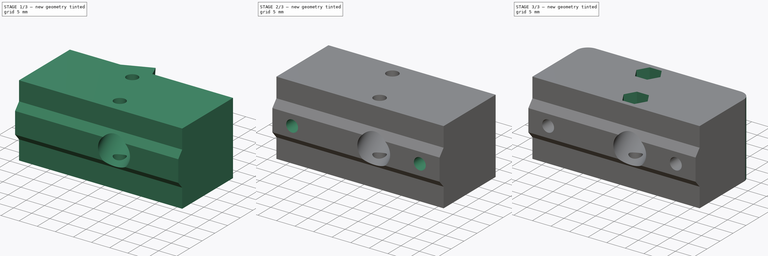
[diagram: build sequence overview — one tinted view per stage of 3, left to right]
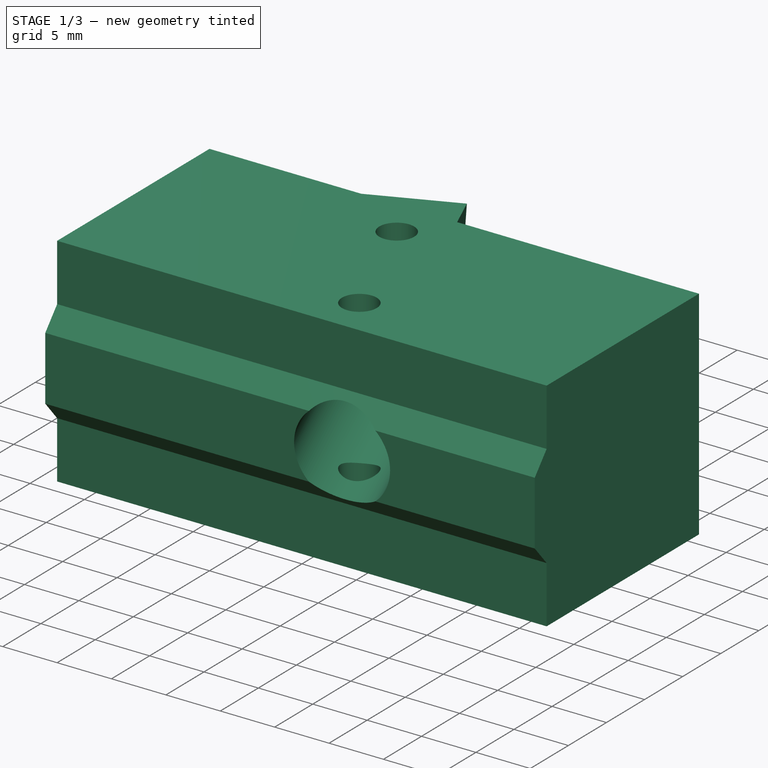
[diagram: stage 1 of 3 — iso view after this stage's code; geometry added in this stage tinted green]
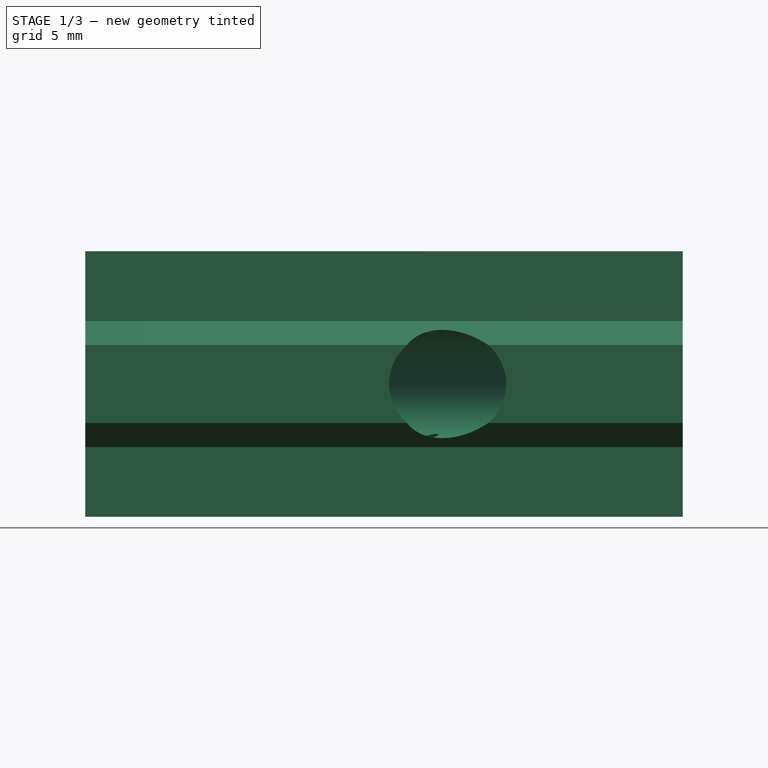
[diagram: stage 1 of 3 — front view after this stage's code; geometry added in this stage tinted green]
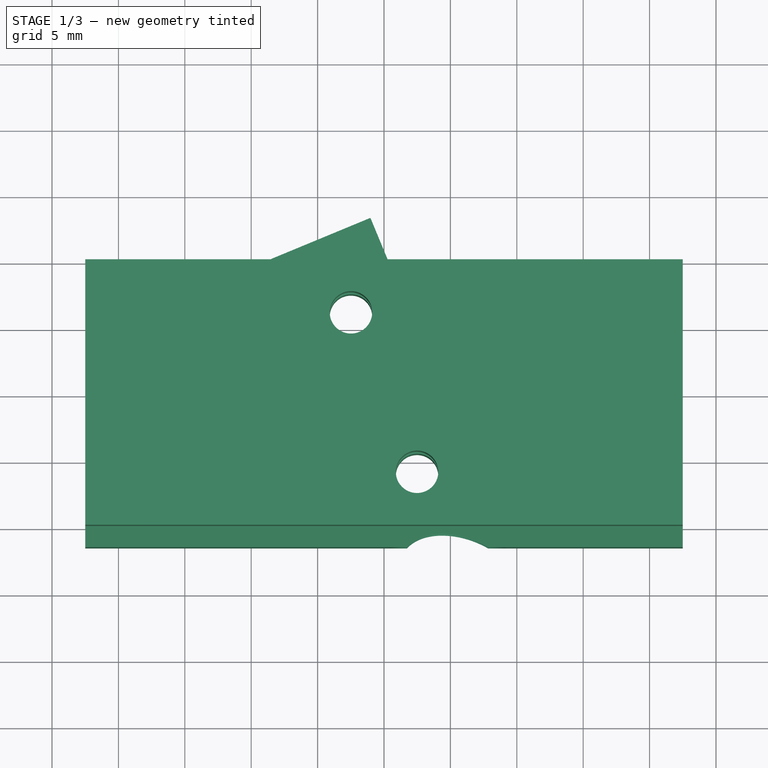
[diagram: stage 1 of 3 — top view after this stage's code; geometry added in this stage tinted green]
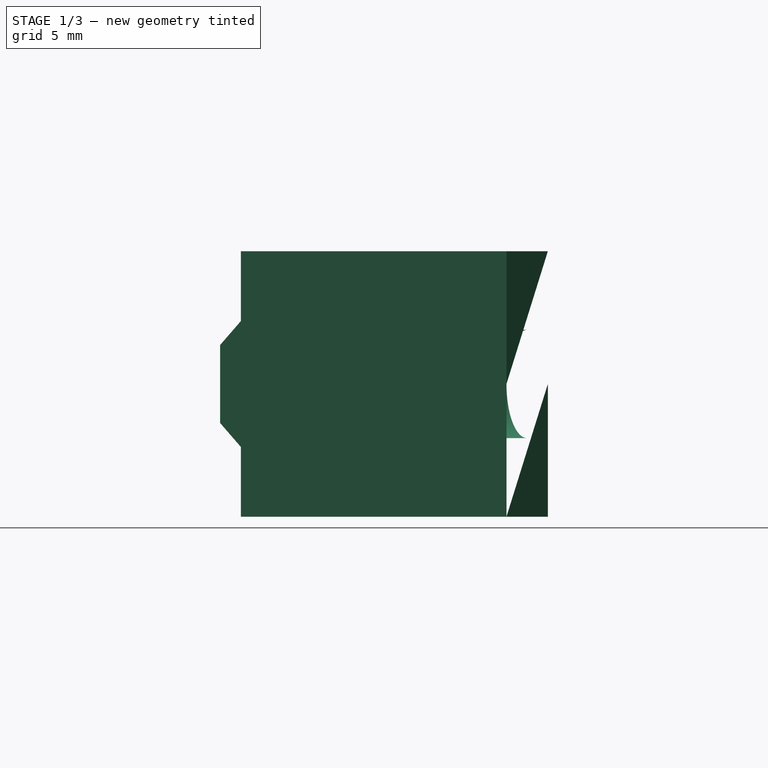
[diagram: stage 1 of 3 — right view after this stage's code; geometry added in this stage tinted green]
FCSTD DOCUMENT  (FreeCAD 0.20R29603 (Git))
Label: hasta-M8-unica-inferior
License: All rights reserved
LicenseURL: http://en.wikipedia.org/wiki/All_rights_reserved
objects: Sketcher::SketchObject×7, PartDesign::Pocket×5, PartDesign::Pad×2, PartDesign::Fillet×1, PartDesign::Body×1
note: 24 computed .brp shape members not serialized (recipe doc carries the construction recipe); baked Part::Feature solids carry a one-line shape summary decoded from their .brp

FEATURE [Sketcher::SketchObject] Sketch
  FullyConstrained = false
  MapMode = 5
  Support = -> [XY_Plane]
  sketch-geometry (27):
    g0: LineSegment StartX=-22.5 StartY=10 StartZ=0 EndX=22.5 EndY=10 EndZ=0
    g1: LineSegment StartX=22.5 StartY=10 StartZ=0 EndX=22.5 EndY=-10 EndZ=0
    g2: LineSegment StartX=22.5 StartY=-10 StartZ=0 EndX=-22.5 EndY=-10 EndZ=0
    g3: LineSegment StartX=-22.5 StartY=-10 StartZ=0 EndX=-22.5 EndY=10 EndZ=0
    g4: LineSegment StartX=22.5 StartY=10 StartZ=0 EndX=-22.5 EndY=-10 EndZ=0
    g5: LineSegment StartX=-22.5 StartY=10 StartZ=0 EndX=22.5 EndY=-10 EndZ=0
    g6: LineSegment StartX=0 StartY=0 StartZ=0 EndX=19.1934 EndY=-46.337 EndZ=0
    g7: LineSegment StartX=19.1934 StartY=-46.337 StartZ=0 EndX=38.3868 EndY=0 EndZ=0
    g8: LineSegment StartX=0 StartY=10 StartZ=0 EndX=17.186 EndY=10 EndZ=0
    g9: LineSegment StartX=0 StartY=10 StartZ=0 EndX=-17.186 EndY=10 EndZ=0
    g10: LineSegment StartX=-0.268613 StartY=-10 StartZ=0 EndX=-8.55288 EndY=10 EndZ=0
    g11: LineSegment StartX=8.55288 StartY=-10 StartZ=0 EndX=0.268613 EndY=10 EndZ=0
    g12: LineSegment StartX=0 StartY=0 StartZ=0 EndX=-3.76481 EndY=-1.55943 EndZ=0
    g13: LineSegment StartX=0 StartY=0 StartZ=0 EndX=3.76481 EndY=1.55943 EndZ=0
    g14: LineSegment StartX=-3.76481 StartY=-1.55943 StartZ=0 EndX=3.76481 EndY=1.55943 EndZ=0
    g15: LineSegment StartX=-0.268613 StartY=-10 StartZ=0 EndX=-8.55288 EndY=10 EndZ=0
    g16: LineSegment StartX=8.55288 StartY=-10 StartZ=0 EndX=-1.02327 EndY=13.1189 EndZ=0
    g17: LineSegment StartX=-8.55288 StartY=10 StartZ=0 EndX=-1.02327 EndY=13.1189 EndZ=0
    g18: LineSegment StartX=-8.55288 StartY=10 StartZ=0 EndX=-1.02327 EndY=13.1189 EndZ=0
    g19: LineSegment StartX=-1.02327 StartY=13.1189 StartZ=0 EndX=0.268613 EndY=10 EndZ=0
    g20: LineSegment StartX=-22.5 StartY=10 StartZ=0 EndX=-8.55288 EndY=10 EndZ=0
    g21: LineSegment StartX=22.5 StartY=10 StartZ=0 EndX=0.268613 EndY=10 EndZ=0
    g22: LineSegment StartX=-2.48744 StartY=6.00522 StartZ=0 EndX=0 EndY=0 EndZ=0
    g23: LineSegment StartX=0 StartY=0 StartZ=0 EndX=2.48744 EndY=-6.00522 EndZ=0
    g24: LineSegment StartX=-2.48744 StartY=6.00522 StartZ=0 EndX=2.48744 EndY=-6.00522 EndZ=0
    g25: Circle CenterX=-2.48744 CenterY=6.00522 CenterZ=0 NormalX=0 NormalY=0 NormalZ=1 AngleXU=0 Radius=1.6
    g26: Circle CenterX=2.48744 CenterY=-6.00522 CenterZ=0 NormalX=0 NormalY=0 NormalZ=1 AngleXU=0 Radius=1.6
  constraints (73):
    c: Coincident(g0,g1)
    c: Coincident(g1,g2)
    c: Coincident(g2,g3)
    c: Coincident(g3,g0)
    c: Horizontal(g0)
    c: Horizontal(g2)
    c: Vertical(g1)
    c: Vertical(g3)
    c: Coincident(g4,g0)
    c: Coincident(g4,g2)
    c: Coincident(g5,g0)
    c: Coincident(g5,g1)
    c: PointOnObject(g-1,g4)
    c: PointOnObject(g-1,g5)
    c: DistanceY(g3,g3) = 20
    c: DistanceX(g0,g0) = 45
    c: Coincident(g7,g6)
    c: Equal(g7,g6)
    c: Angle(g7,g6) = 0.785398
    c: PointOnObject(g-1,g6)
    c: PointOnObject(g7,g-1)
    c: PointOnObject(g6,g-1)
    c: Coincident(g9,g8)
    c: PointOnObject(g8,g0)
    c: PointOnObject(g8,g-2)
    c: Equal(g9,g8)
    c: DistanceX(g9,g8) = 34.372
    c: Horizontal(g9)
    c: Horizontal(g8)
    c: Parallel(g11,g10)
    c: Parallel(g10,g6)
    c: PointOnObject(g11,g2)
    c: PointOnObject(g10,g2)
    c: PointOnObject(g10,g0)
    c: PointOnObject(g11,g0)
    c: Coincident(g13,g12)
    c: Equal(g13,g12)
    c: PointOnObject(g12,g10)
    c: PointOnObject(g13,g11)
    c: Angle(g13,g11) = 1.5708
    c: Coincident(g14,g13)
    c: Coincident(g14,g12)
    c: PointOnObject(g12,g14)
    c: Coincident(g12,g6)
    c: Distance(g12,g13) = 8.15
    c: Coincident(g15,g10)
    c: Coincident(g16,g11)
    c: PointOnObject(g11,g16)
    c: PointOnObject(g12,g15)
    c: Coincident(g17,g15)
    c: Coincident(g17,g16)
    c: Parallel(g13,g17)
    c: Coincident(g19,g18)
    c: Coincident(g19,g11)
    c: Coincident(g16,g18)
    c: Coincident(g20,g3)
    c: Coincident(g21,g1)
    c: Coincident(g21,g19)
    c: Coincident(g18,g20)
    c: Horizontal(g20)
    c: Coincident(g15,g18)
    c: Coincident(g23,g22)
    c: Coincident(g23,g6)
    c: Equal(g23,g22)
    c: Coincident(g24,g22)
    c: Coincident(g24,g23)
    c: PointOnObject(g23,g6)
    c: PointOnObject(g6,g24)
    c: Coincident(g25,g22)
    c: Coincident(g26,g23)
    c: Equal(g26,g25)
    c: Diameter(g25) = 3.2
    c: Distance(g26,g25) = 13
FEATURE [PartDesign::Pad] Pad
  Direction = (0,0,1)
  Length = 20
  Length2 = 10
  Profile = -> Sketch
  ReferenceAxis = -> Sketch [N_Axis]
  Type = 0
FEATURE [Sketcher::SketchObject] Sketch001
  ExternalGeometry = -> [Pad]
  FullyConstrained = true
  MapMode = 5
  Placement = pos=(-22.5,0,0) rot=(0.57735,-0.57735,-0.57735;2.0944rad)
  Support = -> [Pad]
  sketch-geometry (7):
    g0: LineSegment StartX=10 StartY=20 StartZ=0 EndX=10 EndY=10 EndZ=0
    g1: LineSegment StartX=10 StartY=0 StartZ=0 EndX=10 EndY=10 EndZ=0
    g2: LineSegment StartX=10 StartY=10 StartZ=0 EndX=10 EndY=14.74 EndZ=0
    g3: LineSegment StartX=10 StartY=14.74 StartZ=0 EndX=11.56 EndY=12.94 EndZ=0
    g4: LineSegment StartX=11.56 StartY=12.94 StartZ=0 EndX=11.56 EndY=7.06 EndZ=0
    g5: LineSegment StartX=11.56 StartY=7.06 StartZ=0 EndX=10 EndY=5.26 EndZ=0
    g6: LineSegment StartX=10 StartY=5.26 StartZ=0 EndX=10 EndY=10 EndZ=0
  constraints (19):
    c: Coincident(g0,g-3)
    c: Coincident(g1,g-3)
    c: Coincident(g1,g0)
    c: Equal(g1,g0)
    c: PointOnObject(g0,g-3)
    c: Coincident(g0,g2)
    c: Coincident(g2,g3)
    c: Coincident(g3,g4)
    c: Vertical(g4)
    c: Coincident(g4,g5)
    c: Coincident(g5,g6)
    c: Coincident(g6,g2)
    c: Equal(g6,g2)
    c: Equal(g5,g3)
    c: Vertical(g2)
    c: Vertical(g6)
    c: DistanceY(g5,g2) = 9.48
    c: DistanceY(g4,g4) = 5.88
    c: DistanceX(g2,g3) = 1.56
FEATURE [PartDesign::Pad] Pad001
  BaseFeature = -> Pad
  Direction = (-1,0,0)
  Length = 10
  Length2 = 10
  Profile = -> Sketch001
  ReferenceAxis = -> Sketch001 [N_Axis]
  Type = 3
  UpToFace = -> Pad [Face1]
FEATURE [Sketcher::SketchObject] Sketch002
  ExternalGeometry = -> [Pad001]
  FullyConstrained = true
  MapMode = 5
  Placement = pos=(-4.78807,11.5594,0) rot=(-0.139281,0.700215,0.700215;3.41838rad)
  Support = -> [Pad001]
  sketch-geometry (3):
    g0: LineSegment StartX=0 StartY=0 StartZ=0 EndX=0 EndY=10 EndZ=0
    g1: LineSegment StartX=0 StartY=10 StartZ=0 EndX=0 EndY=20 EndZ=0
    g2: Circle CenterX=0 CenterY=10 CenterZ=0 NormalX=0 NormalY=0 NormalZ=1 AngleXU=0 Radius=4.075
  constraints (8):
    c: Coincident(g0,g-1)
    c: Coincident(g1,g0)
    c: PointOnObject(g1,g-3)
    c: PointOnObject(g1,g-2)
    c: Equal(g1,g0)
    c: PointOnObject(g0,g-2)
    c: Coincident(g2,g0)
    c: Diameter(g2) = 8.15
FEATURE [PartDesign::Pocket] Pocket
  BaseFeature = -> Pad001
  Direction = (0.382683,-0.92388,2e-16)
  Length = 5
  Length2 = 5
  Profile = -> Sketch002
  ReferenceAxis = -> Sketch002 [N_Axis]
  Type = 1
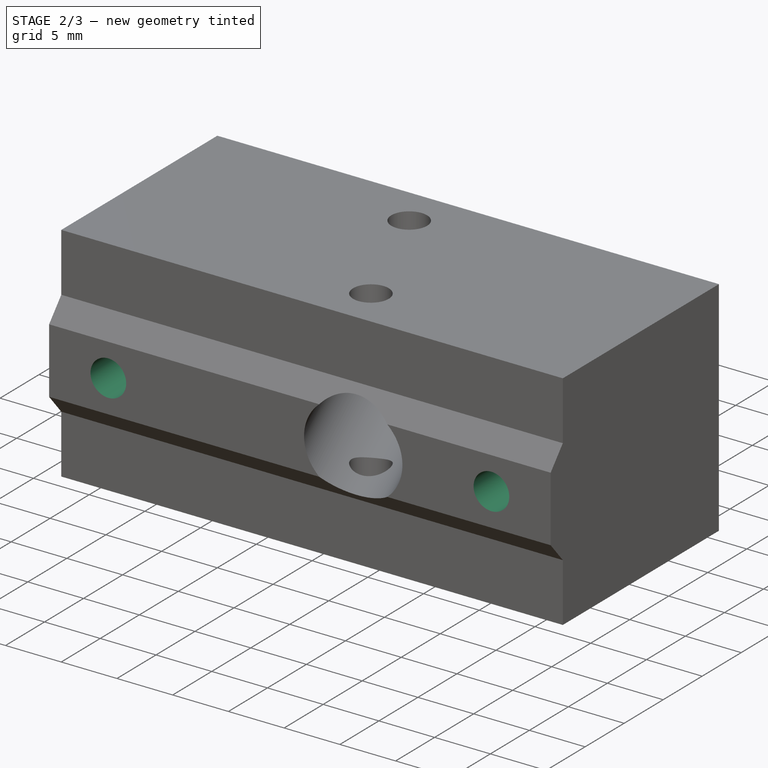
[diagram: stage 2 of 3 — iso view after this stage's code; geometry added in this stage tinted green]
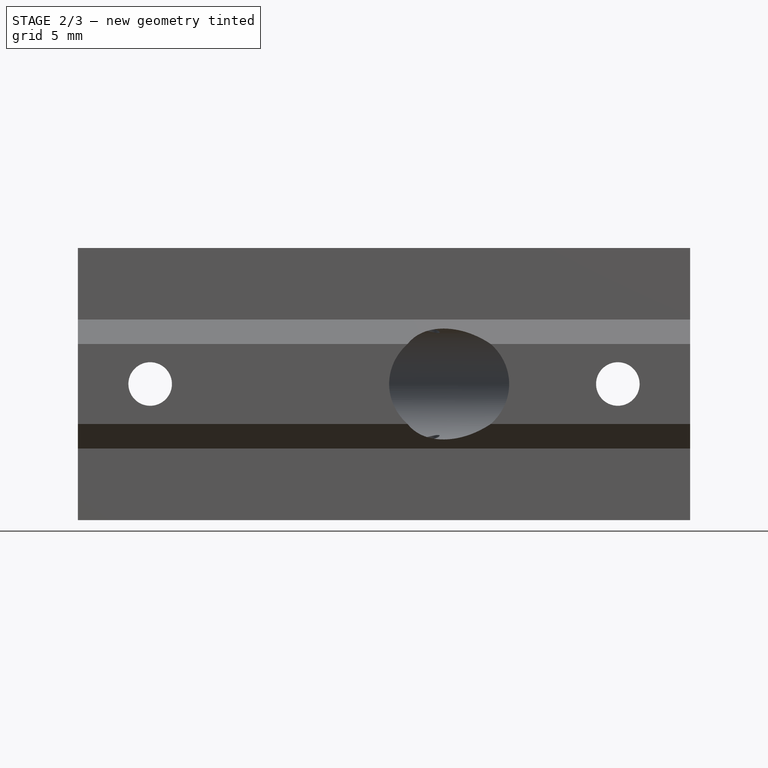
[diagram: stage 2 of 3 — front view after this stage's code; geometry added in this stage tinted green]
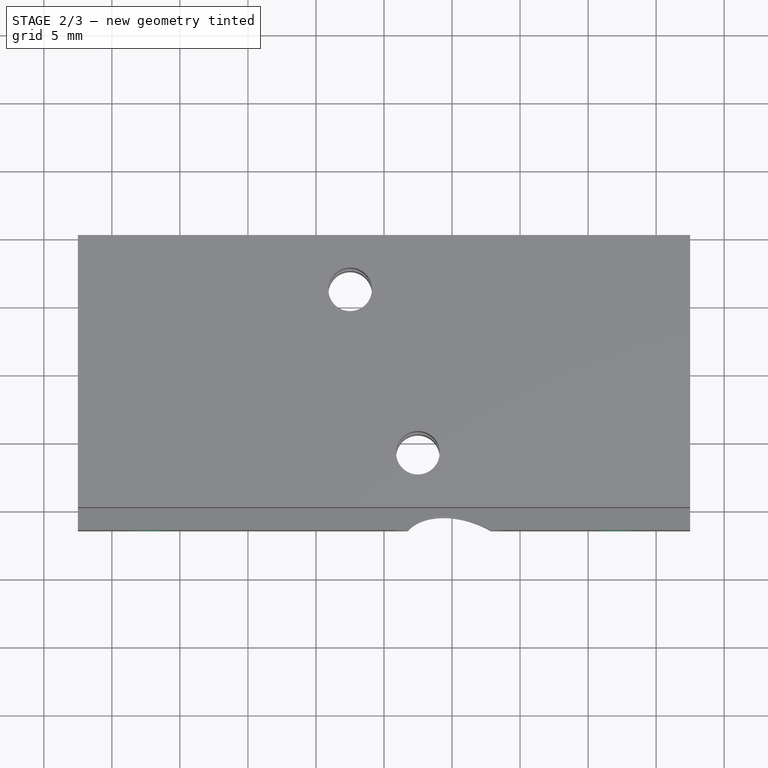
[diagram: stage 2 of 3 — top view after this stage's code; geometry added in this stage tinted green]
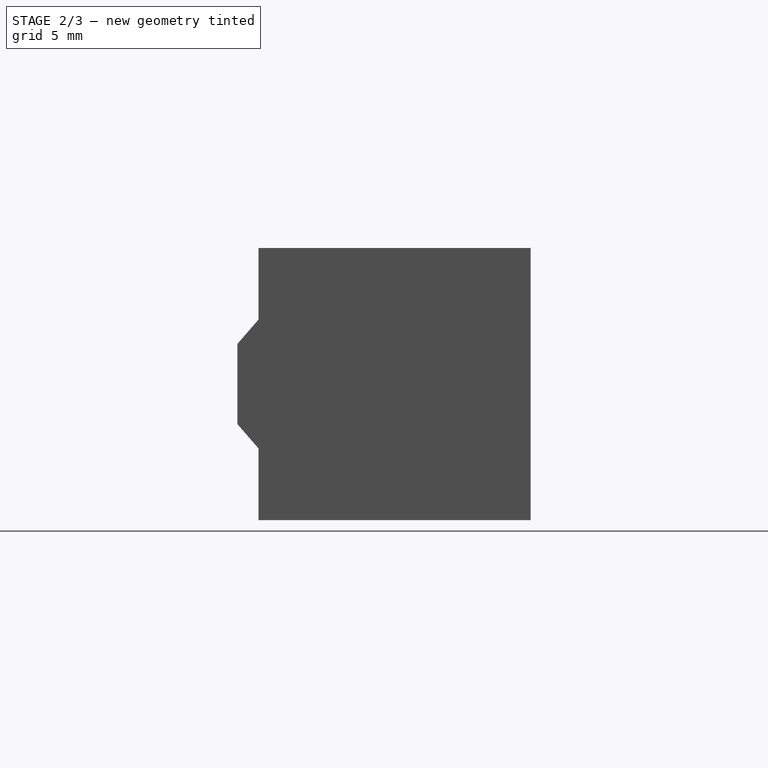
[diagram: stage 2 of 3 — right view after this stage's code; geometry added in this stage tinted green]
FEATURE [Sketcher::SketchObject] Sketch003
  ExternalGeometry = -> [Pocket]
  FullyConstrained = true
  MapMode = 5
  Placement = pos=(0,0,0) rot=(1,0,0;3.14159rad)
  Support = -> [Pocket]
  sketch-geometry (3):
    g0: LineSegment StartX=-8.55288 StartY=-10 StartZ=0 EndX=-1.02327 EndY=-13.1189 EndZ=0
    g1: LineSegment StartX=-1.02327 StartY=-13.1189 StartZ=0 EndX=0.268613 EndY=-10 EndZ=0
    g2: LineSegment StartX=0.268613 StartY=-10 StartZ=0 EndX=-8.55288 EndY=-10 EndZ=0
  constraints (6):
    c: Coincident(g-3,g0)
    c: Coincident(g0,g1)
    c: Coincident(g1,g2)
    c: Coincident(g2,g0)
    c: Coincident(g1,g-4)
    c: Coincident(g0,g-4)
FEATURE [PartDesign::Pocket] Pocket001
  BaseFeature = -> Pocket
  Direction = (0,0,1)
  Length = 5
  Length2 = 5
  Profile = -> Sketch003
  ReferenceAxis = -> Sketch003 [N_Axis]
  Type = 1
FEATURE [Sketcher::SketchObject] Sketch004
  ExternalGeometry = -> [Pocket001]
  FullyConstrained = true
  MapMode = 5
  Placement = pos=(0,10,0) rot=(0,0.707107,0.707107;3.14159rad)
  Support = -> [Pocket001]
  sketch-geometry (8):
    g0: LineSegment StartX=-22.5 StartY=20 StartZ=0 EndX=-22.5 EndY=10 EndZ=0
    g1: LineSegment StartX=-22.5 StartY=0 StartZ=0 EndX=-22.5 EndY=10 EndZ=0
    g2: LineSegment StartX=-22.5 StartY=10 StartZ=0 EndX=0 EndY=10 EndZ=0
    g3: LineSegment StartX=0 StartY=10 StartZ=0 EndX=22.5 EndY=10 EndZ=0
    g4: LineSegment StartX=0 StartY=10 StartZ=0 EndX=-17.186 EndY=10 EndZ=0
    g5: LineSegment StartX=0 StartY=10 StartZ=0 EndX=17.186 EndY=10 EndZ=0
    g6: Circle CenterX=-17.186 CenterY=10 CenterZ=0 NormalX=0 NormalY=0 NormalZ=1 AngleXU=0 Radius=1.6
    g7: Circle CenterX=17.186 CenterY=10 CenterZ=0 NormalX=0 NormalY=0 NormalZ=1 AngleXU=0 Radius=1.6
  constraints (22):
    c: Coincident(g0,g-3)
    c: PointOnObject(g1,g-1)
    c: Coincident(g1,g0)
    c: Equal(g0,g1)
    c: PointOnObject(g0,g-3)
    c: PointOnObject(g1,g-3)
    c: Coincident(g2,g0)
    c: Coincident(g3,g2)
    c: PointOnObject(g3,g-4)
    c: Horizontal(g3)
    c: Horizontal(g2)
    c: Equal(g2,g3)
    c: Coincident(g4,g2)
    c: Coincident(g5,g2)
    c: Equal(g5,g4)
    c: Coincident(g6,g4)
    c: Coincident(g7,g5)
    c: Equal(g6,g7)
    c: Diameter(g6) = 3.2
    c: Horizontal(g4)
    c: Horizontal(g5)
    c: DistanceX(g6,g7) = 34.372
FEATURE [PartDesign::Pocket] Pocket002
  BaseFeature = -> Pocket001
  Direction = (0,-1,2e-16)
  Length = 5
  Length2 = 5
  Profile = -> Sketch004
  ReferenceAxis = -> Sketch004 [N_Axis]
  Type = 1
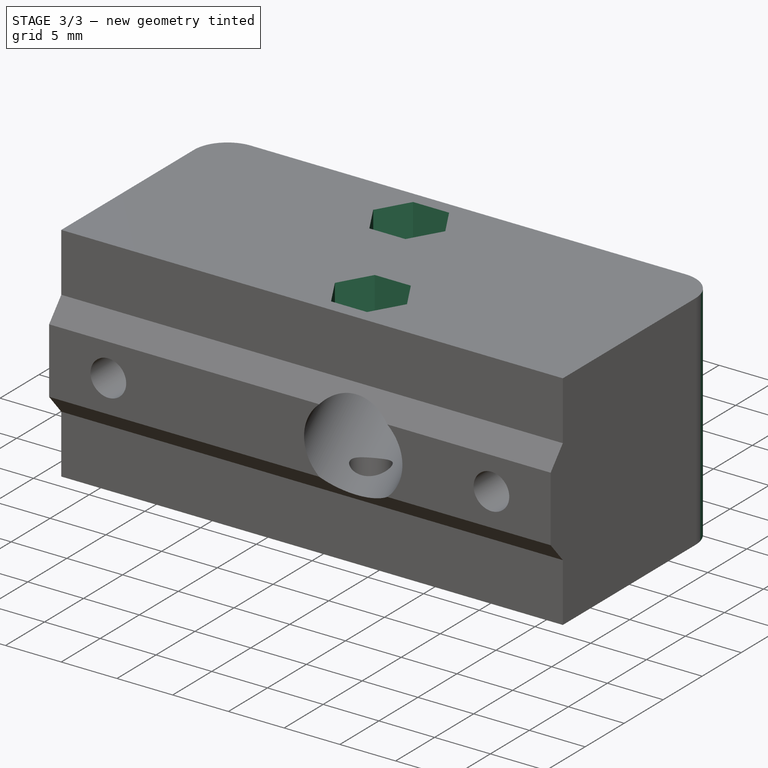
[diagram: stage 3 of 3 — iso view after this stage's code; geometry added in this stage tinted green]
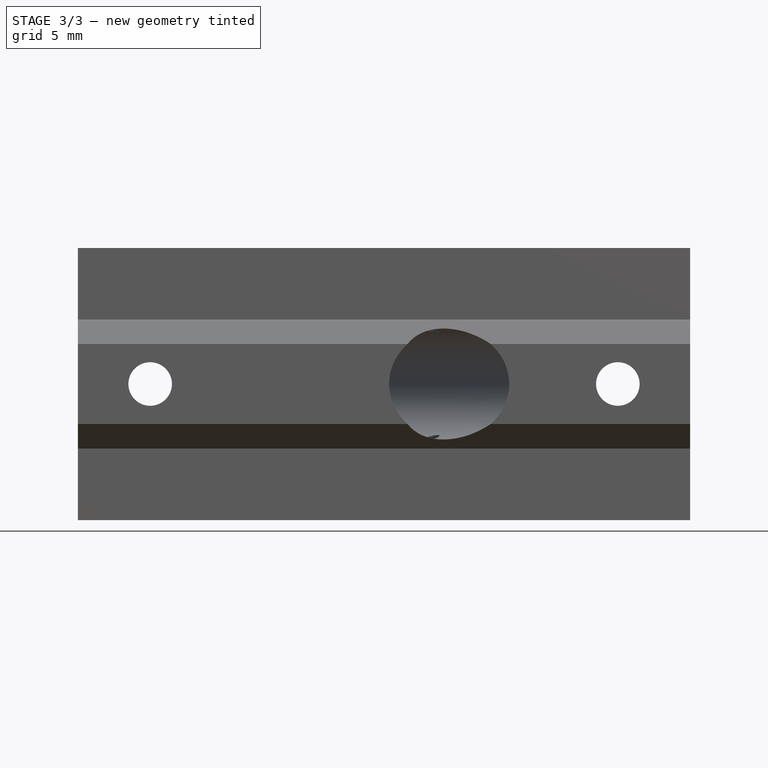
[diagram: stage 3 of 3 — front view after this stage's code; geometry added in this stage tinted green]
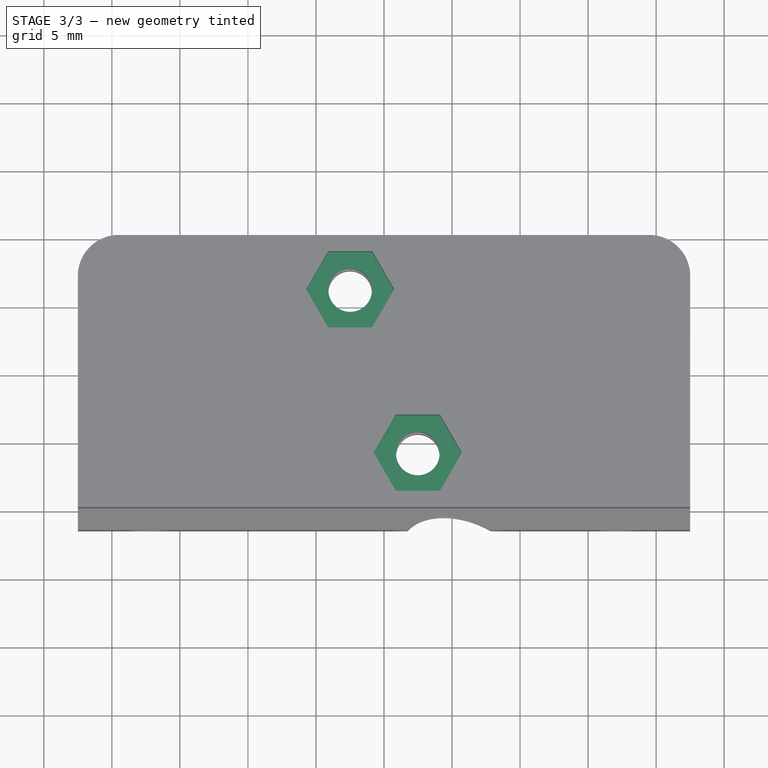
[diagram: stage 3 of 3 — top view after this stage's code; geometry added in this stage tinted green]
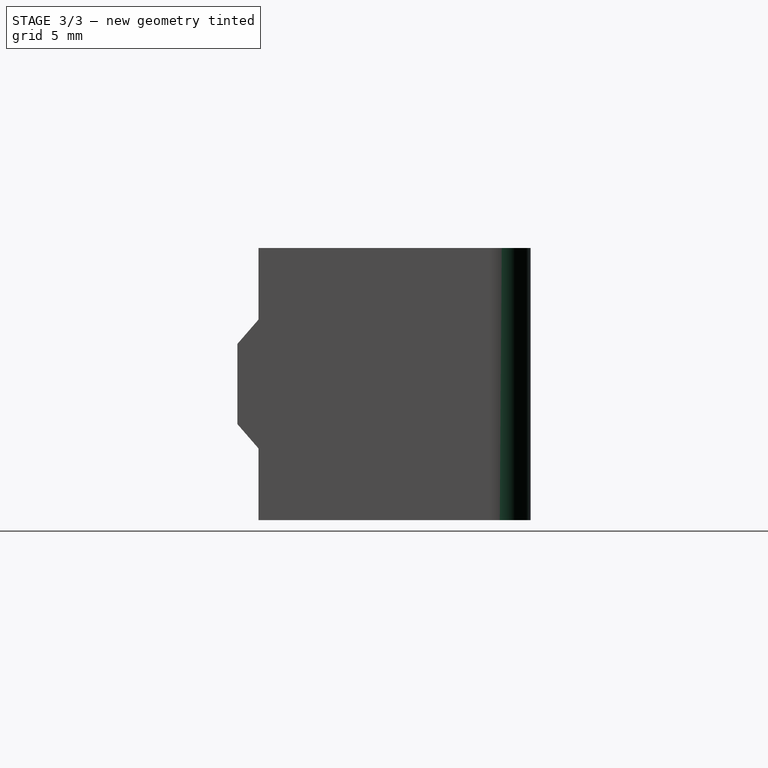
[diagram: stage 3 of 3 — right view after this stage's code; geometry added in this stage tinted green]
FEATURE [PartDesign::Fillet] Fillet
  Base = -> Pocket002 [Edge40,Edge1]
  BaseFeature = -> Pocket002
  Radius = 3
  SupportTransform = false
  UseAllEdges = false
FEATURE [Sketcher::SketchObject] Sketch005
  ExternalGeometry = -> [Fillet]
  FullyConstrained = true
  MapMode = 5
  Placement = pos=(0,0,0) rot=(1,0,0;3.14159rad)
  Support = -> [Fillet]
  sketch-geometry (14):
    g0: LineSegment StartX=5.7206 StartY=6.00522 StartZ=0 EndX=4.10402 EndY=8.80522 EndZ=0
    g1: LineSegment StartX=4.10402 StartY=8.80522 StartZ=0 EndX=0.870862 EndY=8.80522 EndZ=0
    g2: LineSegment StartX=0.870862 StartY=8.80522 StartZ=0 EndX=-0.745719 EndY=6.00522 EndZ=0
    g3: LineSegment StartX=-0.745719 StartY=6.00522 StartZ=0 EndX=0.870862 EndY=3.20522 EndZ=0
    g4: LineSegment StartX=0.870862 StartY=3.20522 StartZ=0 EndX=4.10402 EndY=3.20522 EndZ=0
    g5: LineSegment StartX=4.10402 StartY=3.20522 StartZ=0 EndX=5.7206 EndY=6.00522 EndZ=0
    g6: Circle CenterX=2.48744 CenterY=6.00522 CenterZ=0 NormalX=0 NormalY=0 NormalZ=1 AngleXU=0 Radius=3.23316
    g7: LineSegment StartX=-5.7206 StartY=-6.00522 StartZ=0 EndX=-4.10402 EndY=-8.80522 EndZ=0
    g8: LineSegment StartX=-4.10402 StartY=-8.80522 StartZ=0 EndX=-0.870862 EndY=-8.80522 EndZ=0
    g9: LineSegment StartX=-0.870862 StartY=-8.80522 StartZ=0 EndX=0.745719 EndY=-6.00522 EndZ=0
    g10: LineSegment StartX=0.745719 StartY=-6.00522 StartZ=0 EndX=-0.870862 EndY=-3.20522 EndZ=0
    g11: LineSegment StartX=-0.870862 StartY=-3.20522 StartZ=0 EndX=-4.10402 EndY=-3.20522 EndZ=0
    g12: LineSegment StartX=-4.10402 StartY=-3.20522 StartZ=0 EndX=-5.7206 EndY=-6.00522 EndZ=0
    g13: Circle CenterX=-2.48744 CenterY=-6.00522 CenterZ=0 NormalX=0 NormalY=0 NormalZ=1 AngleXU=0 Radius=3.23316
  constraints (32):
    c: Coincident(g0,g1)
    c: Coincident(g1,g2)
    c: Coincident(g2,g3)
    c: Coincident(g3,g4)
    c: Coincident(g4,g5)
    c: Coincident(g5,g0)
    c: Equal(g0, g1-g5) x5
    c: PointOnObject(g0,g6)
    c: PointOnObject(g1,g6)
    c: PointOnObject(g2,g6)
    c: PointOnObject(g3,g6)
    c: PointOnObject(g4,g6)
    c: PointOnObject(g5,g6)
    c: Coincident(g6,g-4)
    c: Coincident(g7,g8)
    c: Coincident(g8,g9)
    c: Coincident(g9,g10)
    c: Coincident(g10,g11)
    c: Coincident(g11,g12)
    c: Coincident(g12,g7)
    c: Equal(g7, g8-g12) x5
    c: PointOnObject(g7,g13)
    c: PointOnObject(g8,g13)
    c: PointOnObject(g9,g13)
    c: PointOnObject(g10,g13)
    c: PointOnObject(g11,g13)
    c: PointOnObject(g12,g13)
    c: Coincident(g13,g-5)
    c: Horizontal(g11)
    c: Horizontal(g4)
    c: Equal(g6,g13)
    c: DistanceY(g4,g0) = 5.6
FEATURE [PartDesign::Pocket] Pocket003
  BaseFeature = -> Fillet
  Direction = (0,0,1)
  Length = 3.2
  Length2 = 5
  Profile = -> Sketch005
  ReferenceAxis = -> Sketch005 [N_Axis]
  Type = 0
FEATURE [Sketcher::SketchObject] Sketch006
  ExternalGeometry = -> [Pocket003]
  FullyConstrained = true
  MapMode = 5
  Placement = pos=(0,0,20) rot=(0,0,1;0rad)
  Support = -> [Pocket003]
  sketch-geometry (14):
    g0: LineSegment StartX=0.745719 StartY=6.00522 StartZ=0 EndX=-0.870862 EndY=8.80522 EndZ=0
    g1: LineSegment StartX=-0.870862 StartY=8.80522 StartZ=0 EndX=-4.10402 EndY=8.80522 EndZ=0
    g2: LineSegment StartX=-4.10402 StartY=8.80522 StartZ=0 EndX=-5.7206 EndY=6.00522 EndZ=0
    g3: LineSegment StartX=-5.7206 StartY=6.00522 StartZ=0 EndX=-4.10402 EndY=3.20522 EndZ=0
    g4: LineSegment StartX=-4.10402 StartY=3.20522 StartZ=0 EndX=-0.870862 EndY=3.20522 EndZ=0
    g5: LineSegment StartX=-0.870862 StartY=3.20522 StartZ=0 EndX=0.745719 EndY=6.00522 EndZ=0
    g6: Circle CenterX=-2.48744 CenterY=6.00522 CenterZ=0 NormalX=0 NormalY=0 NormalZ=1 AngleXU=0 Radius=3.23316
    g7: LineSegment StartX=5.7206 StartY=-6.00522 StartZ=0 EndX=4.10402 EndY=-3.20522 EndZ=0
    g8: LineSegment StartX=4.10402 StartY=-3.20522 StartZ=0 EndX=0.870862 EndY=-3.20522 EndZ=0
    g9: LineSegment StartX=0.870862 StartY=-3.20522 StartZ=0 EndX=-0.745719 EndY=-6.00522 EndZ=0
    g10: LineSegment StartX=-0.745719 StartY=-6.00522 StartZ=0 EndX=0.870862 EndY=-8.80522 EndZ=0
    g11: LineSegment StartX=0.870862 StartY=-8.80522 StartZ=0 EndX=4.10402 EndY=-8.80522 EndZ=0
    g12: LineSegment StartX=4.10402 StartY=-8.80522 StartZ=0 EndX=5.7206 EndY=-6.00522 EndZ=0
    g13: Circle CenterX=2.48744 CenterY=-6.00522 CenterZ=0 NormalX=0 NormalY=0 NormalZ=1 AngleXU=0 Radius=3.23316
  constraints (30):
    c: Coincident(g0,g1)
    c: Coincident(g1,g2)
    c: Coincident(g2,g3)
    c: Coincident(g3,g4)
    c: Coincident(g4,g5)
    c: Coincident(g5,g0)
    c: Equal(g0, g1-g5) x5
    c: PointOnObject(g0,g6)
    c: PointOnObject(g1,g6)
    c: PointOnObject(g2,g6)
    c: PointOnObject(g3,g6)
    c: PointOnObject(g4,g6)
    c: PointOnObject(g5,g6)
    c: Coincident(g6,g-3)
    c: Coincident(g7,g8)
    c: Coincident(g8,g9)
    c: Coincident(g9,g10)
    c: Coincident(g10,g11)
    c: Coincident(g11,g12)
    c: Coincident(g12,g7)
    c: Equal(g7, g8-g12) x5
    c: PointOnObject(g7,g13)
    c: PointOnObject(g8,g13)
    c: PointOnObject(g9,g13)
    c: PointOnObject(g10,g13)
    c: PointOnObject(g11,g13)
    c: PointOnObject(g12,g13)
    c: Coincident(g13,g-4)
    c: Coincident(g1,g-6)
    c: Coincident(g8,g-5)
FEATURE [PartDesign::Pocket] Pocket004
  BaseFeature = -> Pocket003
  Direction = (0,0,-1)
  Length = 3.2
  Length2 = 5
  Profile = -> Sketch006
  ReferenceAxis = -> Sketch006 [N_Axis]
  Type = 0
FEATURE [PartDesign::Body] Body
  Group = -> [Sketch,Pad,Sketch001,Pad001,Sketch002,Pocket,Sketch003,Pocket001,Sketch004,Pocket002,Fillet,Sketch005,Pocket003,Sketch006,Pocket004]
  Origin = -> Origin
  Tip = -> Pocket004
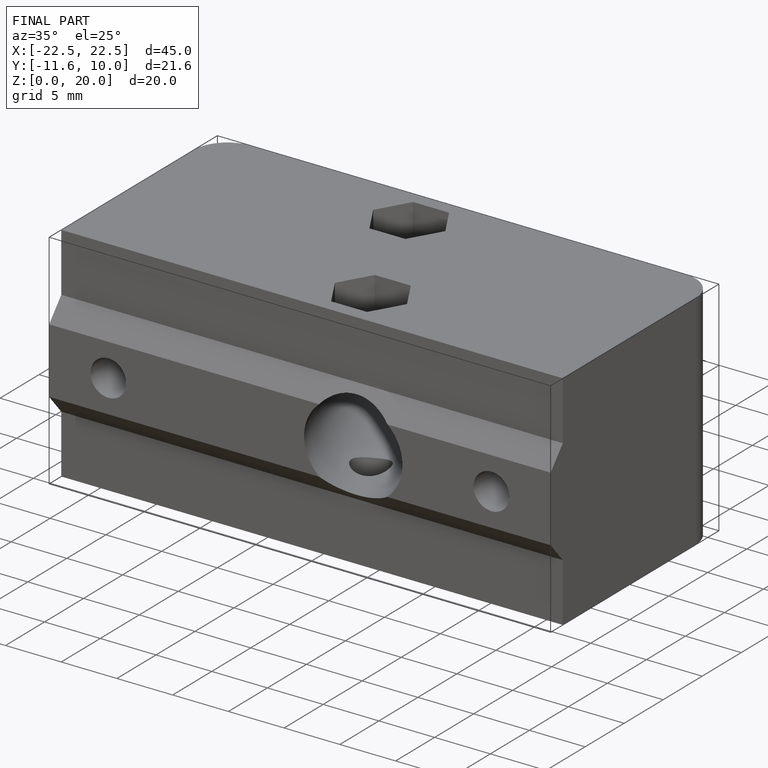
[diagram: finished part — iso view with bounding-box wireframe]
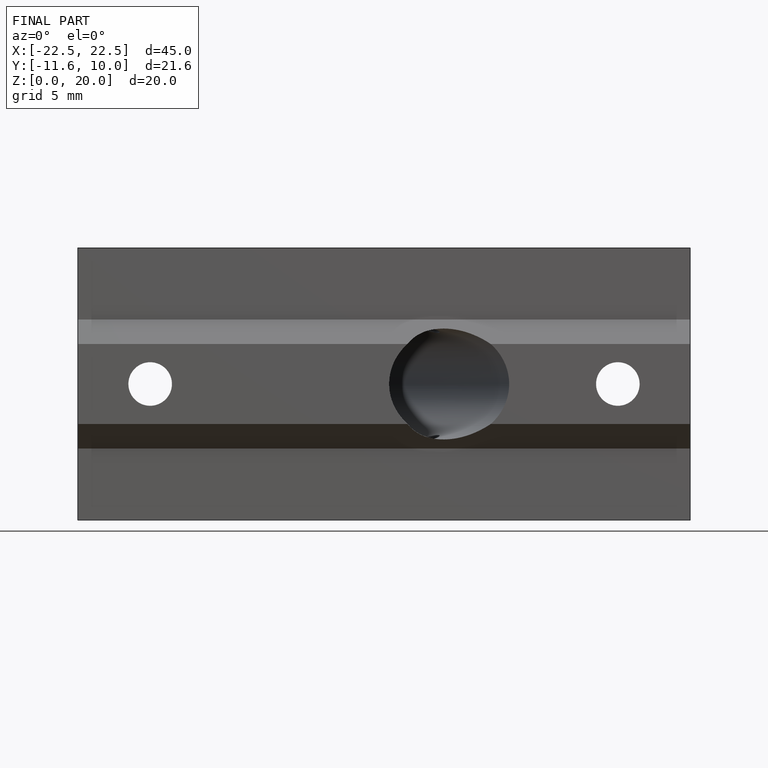
[diagram: finished part — front view with bounding-box wireframe]
